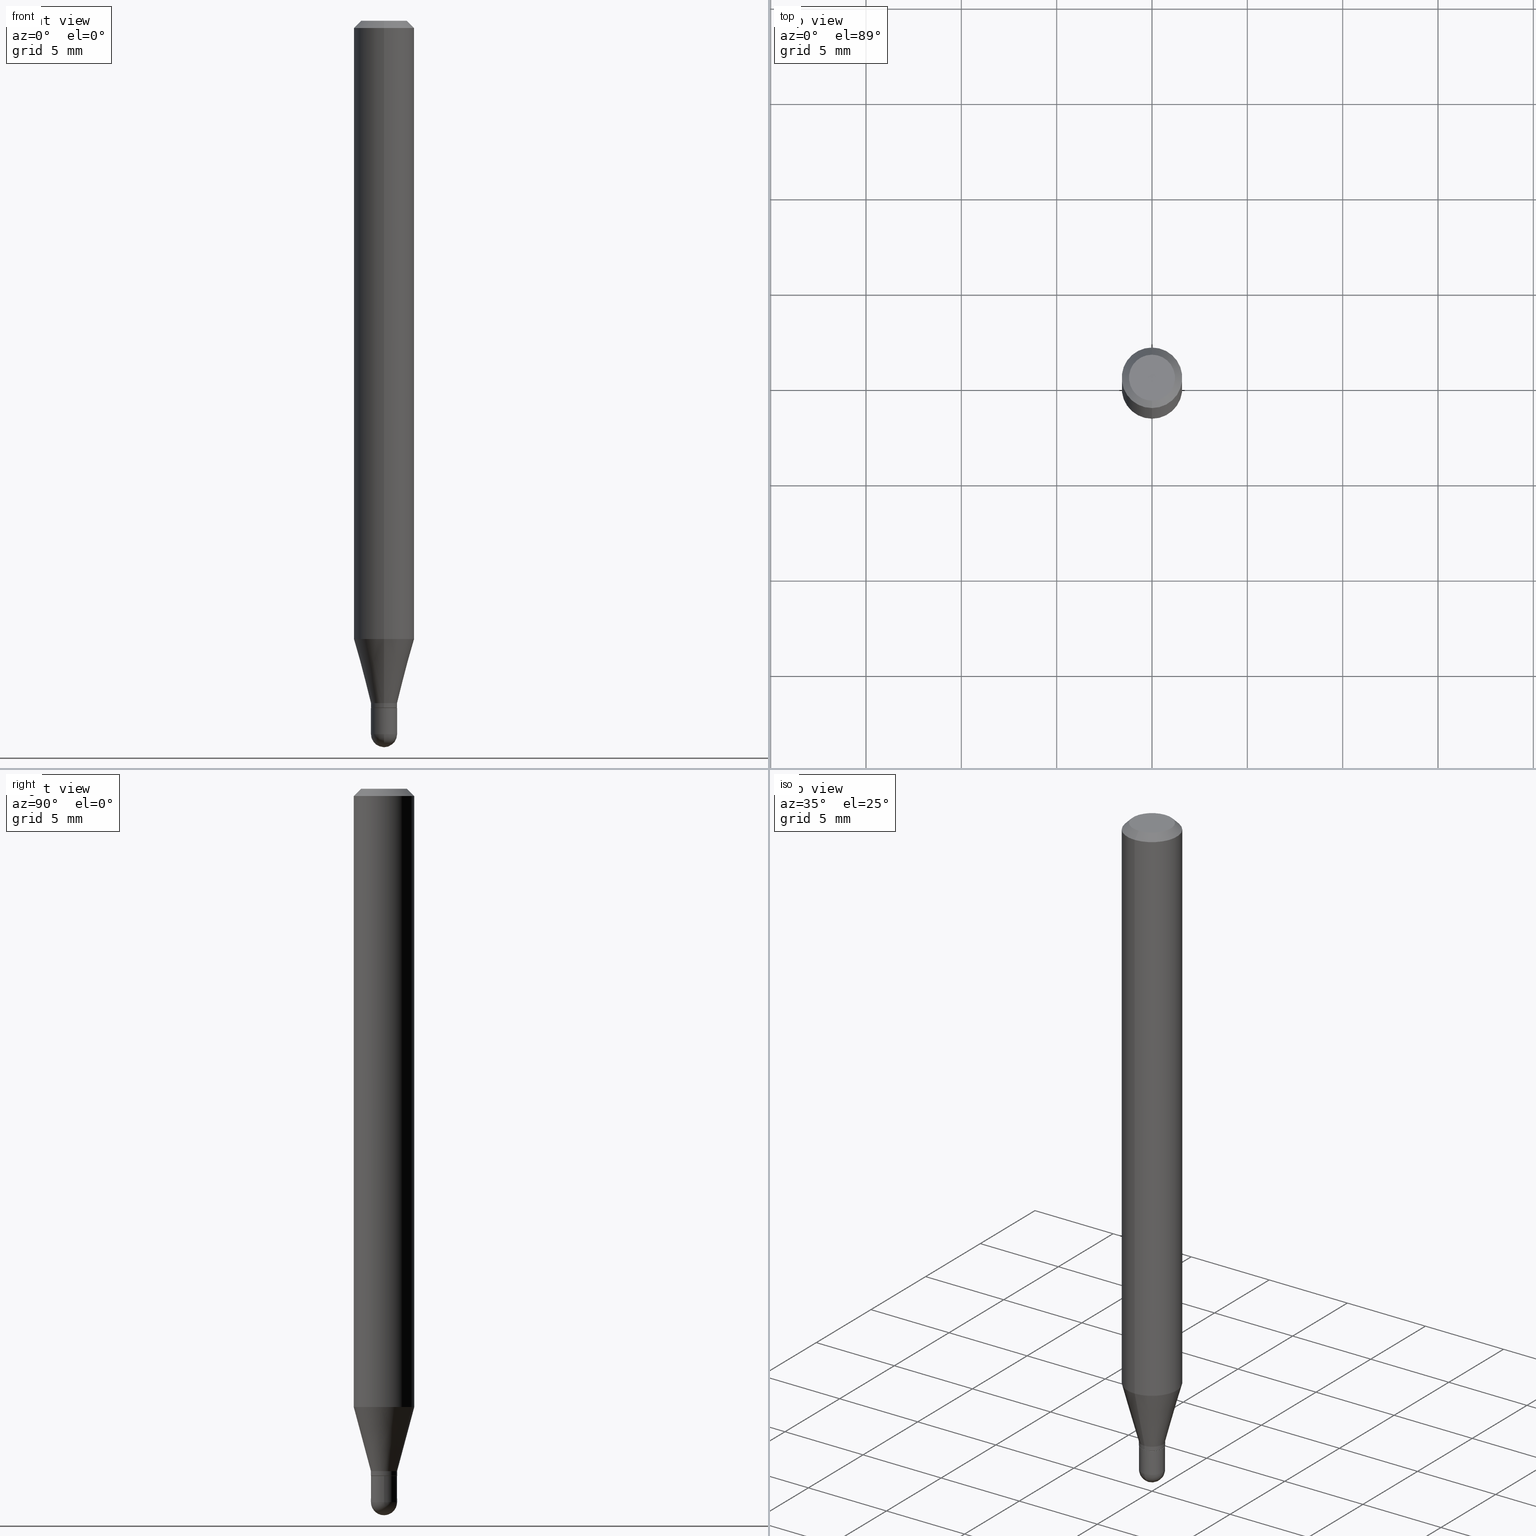
[diagram: canonical four-view strip — front | top / right | iso, engineering-drawing reading convention]
A machine part, canonical four-view strip (front | top / right | iso — engineering-drawing reading convention). The complete STEP part file that produces these views, byte-faithful:
ISO-10303-21;
HEADER;
FILE_DESCRIPTION (( 'STEP AP203' ),
    '1' );
FILE_NAME ('02517.STEP',
    '2024-03-07T20:12:14',
    ( '' ),
    ( '' ),
    'SwSTEP 2.0',
    'SolidWorks 2023',
    '' );
FILE_SCHEMA (( 'CONFIG_CONTROL_DESIGN' ));
ENDSEC;

DATA;
#1 = DIRECTION ( 'NONE',  ( 1.000000000000000000, -6.982962677686267499E-15, 4.876176775795935232E-29 ) ) ;
#2 = ORIENTED_EDGE ( 'NONE', *, *, #264, .T. ) ;
#3 = CONICAL_SURFACE ( 'NONE', #182, 0.02699999999999992337, 0.2617993877991505736 ) ;
#4 = DIRECTION ( 'NONE',  ( -4.937700262164674260E-15, -0.7071067811865632269, 0.7071067811865319186 ) ) ;
#5 = CARTESIAN_POINT ( 'NONE',  ( 3.445667035650748496E-29, -4.919495075907522612E-15, -1.409000000000000474 ) ) ;
#6 = FACE_OUTER_BOUND ( 'NONE', #241, .T. ) ;
#7 =( NAMED_UNIT ( * ) SI_UNIT ( $, .STERADIAN. ) SOLID_ANGLE_UNIT ( ) );
#8 = EDGE_CURVE ( 'NONE', #158, #416, #501, .T. ) ;
#9 = ORIENTED_EDGE ( 'NONE', *, *, #446, .T. ) ;
#10 = CARTESIAN_POINT ( 'NONE',  ( 0.000000000000000000, 0.000000000000000000, 0.000000000000000000 ) ) ;
#11 = VECTOR ( 'NONE', #313, 39.37007874015748143 ) ;
#12 = CARTESIAN_POINT ( 'NONE',  ( 3.470121734271405270E-29, -4.954409874175139427E-15, -1.419000000000000039 ) ) ;
#13 = FACE_OUTER_BOUND ( 'NONE', #245, .T. ) ;
#14 = AXIS2_PLACEMENT_3D ( 'NONE', #154, #211, #367 ) ;
#15 = CALENDAR_DATE ( 2024, 7, 3 ) ;
#16 = DIRECTION ( 'NONE',  ( -6.982962677686265922E-15, -1.000000000000000000, 4.370956789862821150E-15 ) ) ;
#17 = DIRECTION ( 'NONE',  ( -2.445469862065824792E-29, 3.491479826761902806E-15, 1.000000000000000000 ) ) ;
#18 = ORIENTED_EDGE ( 'NONE', *, *, #413, .F. ) ;
#19 = EDGE_CURVE ( 'NONE', #490, #131, #100, .T. ) ;
#20 = PERSON_AND_ORGANIZATION ( #263, #296 ) ;
#21 = EDGE_LOOP ( 'NONE', ( #95, #466, #496, #99 ) ) ;
#22 = ORIENTED_EDGE ( 'NONE', *, *, #252, .T. ) ;
#23 = PERSON_AND_ORGANIZATION ( #263, #296 ) ;
#24 = CIRCLE ( 'NONE', #98, 0.02699999999999992337 ) ;
#25 = DIRECTION ( 'NONE',  ( 1.839019923739602287E-15, 0.2588190451025252359, 0.9659258262890670910 ) ) ;
#26 = PERSON_AND_ORGANIZATION ( #263, #296 ) ;
#27 = CARTESIAN_POINT ( 'NONE',  ( -4.364351673553912750E-16, -0.06250000000000005551, -0.01500000000000011047 ) ) ;
#28 = EDGE_CURVE ( 'NONE', #125, #490, #506, .T. ) ;
#29 = ORIENTED_EDGE ( 'NONE', *, *, #426, .T. ) ;
#30 = VECTOR ( 'NONE', #25, 39.37007874015748143 ) ;
#31 = CIRCLE ( 'NONE', #310, 0.02649999999999999925 ) ;
#32 = CARTESIAN_POINT ( 'NONE',  ( 0.000000000000000000, 0.000000000000000000, 0.000000000000000000 ) ) ;
#33 = APPROVAL ( #85, 'UNSPECIFIED' ) ;
#34 = DIRECTION ( 'NONE',  ( 1.000000000000000000, -7.105427357601001070E-15, 4.926315508542082329E-29 ) ) ;
#35 = DIRECTION ( 'NONE',  ( -1.000000000000000000, 6.982962677686265922E-15, -4.876176775795935793E-29 ) ) ;
#36 = ORIENTED_EDGE ( 'NONE', *, *, #72, .F. ) ;
#37 = DIRECTION ( 'NONE',  ( -2.445468806185136597E-29, 3.491481338843145583E-15, 1.000000000000000000 ) ) ;
#38 = VECTOR ( 'NONE', #4, 39.37007874015748143 ) ;
#39 = APPLICATION_PROTOCOL_DEFINITION ( 'international standard', 'config_control_design', 1994, #393 ) ;
#40 = CARTESIAN_POINT ( 'NONE',  ( 3.179678742526774589E-16, 0.02699999999999500022, -1.409000000000000474 ) ) ;
#41 = CARTESIAN_POINT ( 'NONE',  ( 1.918465386552605006E-16, 0.02699999999999487879, -1.418500000000000094 ) ) ;
#42 = CARTESIAN_POINT ( 'NONE',  ( -3.773273898774340269E-16, -0.04749999999999999362, -1.623017277648283260E-16 ) ) ;
#43 = EDGE_CURVE ( 'NONE', #312, #502, #304, .T. ) ;
#44 = ORIENTED_EDGE ( 'NONE', *, *, #207, .F. ) ;
#45 = DIRECTION ( 'NONE',  ( -2.445468806185136597E-29, 3.491481338843145583E-15, 1.000000000000000000 ) ) ;
#46 = CIRCLE ( 'NONE', #305, 0.02699999999999999969 ) ;
#47 = ORIENTED_EDGE ( 'NONE', *, *, #28, .T. ) ;
#48 = CARTESIAN_POINT ( 'NONE',  ( -4.364351673553605587E-16, -0.06250000000000449640, -1.276512196331305304 ) ) ;
#49 = FACE_OUTER_BOUND ( 'NONE', #492, .T. ) ;
#50 = DIRECTION ( 'NONE',  ( -2.445469862065824792E-29, 3.491479826761902806E-15, 1.000000000000000000 ) ) ;
#51 = CARTESIAN_POINT ( 'NONE',  ( 3.445667035650748496E-29, -4.919495075907522612E-15, -1.409000000000000474 ) ) ;
#52 = DIRECTION ( 'NONE',  ( 4.937700262164548042E-15, 0.7071067811865451302, -0.7071067811865499042 ) ) ;
#53 = EDGE_CURVE ( 'NONE', #354, #458, #137, .T. ) ;
#54 = DIRECTION ( 'NONE',  ( 1.000000000000000000, -6.982962677686265922E-15, 4.883557194083112901E-29 ) ) ;
#55 = DIRECTION ( 'NONE',  ( -6.982962677686265922E-15, -1.000000000000000000, 0.000000000000000000 ) ) ;
#56 = AXIS2_PLACEMENT_3D ( 'NONE', #161, #325, #123 ) ;
#57 = EDGE_LOOP ( 'NONE', ( #218, #216, #22, #214, #18 ) ) ;
#58 = ORIENTED_EDGE ( 'NONE', *, *, #19, .F. ) ;
#59 = DATE_TIME_ROLE ( 'creation_date' ) ;
#60 = VERTEX_POINT ( 'NONE', #462 ) ;
#61 = EDGE_CURVE ( 'NONE', #60, #270, #430, .T. ) ;
#62 = CARTESIAN_POINT ( 'NONE',  ( 4.440892098500625669E-16, 0.06250000000000000000, -2.182174891726189254E-16 ) ) ;
#63 = COORDINATED_UNIVERSAL_TIME_OFFSET ( 5, 0, .BEHIND. ) ;
#64 = AXIS2_PLACEMENT_3D ( 'NONE', #32, #205, #361 ) ;
#65 = EDGE_LOOP ( 'NONE', ( #327, #328, #9, #391 ) ) ;
#66 = EDGE_CURVE ( 'NONE', #502, #269, #438, .T. ) ;
#67 = DIRECTION ( 'NONE',  ( -2.445469862065824792E-29, 3.491479826761902806E-15, 1.000000000000000000 ) ) ;
#68 = FACE_OUTER_BOUND ( 'NONE', #217, .T. ) ;
#69 = EDGE_CURVE ( 'NONE', #158, #125, #340, .T. ) ;
#70 = AXIS2_PLACEMENT_3D ( 'NONE', #408, #17, #55 ) ;
#71 = DIRECTION ( 'NONE',  ( -6.982962677686265922E-15, -1.000000000000000000, 3.483106191921935554E-15 ) ) ;
#72 = EDGE_CURVE ( 'NONE', #416, #490, #79, .T. ) ;
#73 = CARTESIAN_POINT ( 'NONE',  ( -1.850485109586513244E-16, -0.02650000000000495362, -1.419000000000000039 ) ) ;
#74 = DIRECTION ( 'NONE',  ( -6.982962677686265922E-15, -1.000000000000000000, 0.000000000000000000 ) ) ;
#75 = AXIS2_PLACEMENT_3D ( 'NONE', #364, #126, #16 ) ;
#76 = CARTESIAN_POINT ( 'NONE',  ( 3.468898999340373272E-29, -4.952664134261759059E-15, -1.418500000000000094 ) ) ;
#77 = ORIENTED_EDGE ( 'NONE', *, *, #43, .T. ) ;
#78 = LINE ( 'NONE', #473, #231 ) ;
#79 = CIRCLE ( 'NONE', #167, 0.06250000000000000000 ) ;
#80 = FACE_OUTER_BOUND ( 'NONE', #57, .T. ) ;
#81 = ADVANCED_FACE ( 'NONE', ( #49 ), #357, .T. ) ;
#82 = LINE ( 'NONE', #319, #346 ) ;
#83 = SPHERICAL_SURFACE ( 'NONE', #505, 0.02700000000000014888 ) ;
#84 = ORIENTED_EDGE ( 'NONE', *, *, #147, .T. ) ;
#85 = APPROVAL_STATUS ( 'not_yet_approved' ) ;
#86 = DIRECTION ( 'NONE',  ( -2.445469862065824792E-29, 3.491479826761902806E-15, 1.000000000000000000 ) ) ;
#87 = DIRECTION ( 'NONE',  ( -2.445469862065824792E-29, 3.491479826761902806E-15, 1.000000000000000000 ) ) ;
#88 = FACE_OUTER_BOUND ( 'NONE', #170, .T. ) ;
#89 = APPROVAL_DATE_TIME ( #162, #375 ) ;
#90 = VERTEX_POINT ( 'NONE', #234 ) ;
#91 = CC_DESIGN_APPROVAL ( #375, ( #198 ) ) ;
#92 = CLOSED_SHELL ( 'NONE', ( #184, #81, #349, #230, #439 ) ) ;
#93 = VECTOR ( 'NONE', #52, 39.37007874015748143 ) ;
#94 = APPROVAL_ROLE ( '' ) ;
#95 = ORIENTED_EDGE ( 'NONE', *, *, #72, .T. ) ;
#96 = CC_DESIGN_PERSON_AND_ORGANIZATION_ASSIGNMENT ( #20, #215, ( #198 ) ) ;
#97 = CARTESIAN_POINT ( 'NONE',  ( 0.000000000000000000, 0.000000000000000000, 0.000000000000000000 ) ) ;
#98 = AXIS2_PLACEMENT_3D ( 'NONE', #76, #267, #117 ) ;
#99 = ORIENTED_EDGE ( 'NONE', *, *, #152, .F. ) ;
#100 = LINE ( 'NONE', #62, #279 ) ;
#101 = DIRECTION ( 'NONE',  ( 1.000000000000000000, -6.982962677686259611E-15, 0.000000000000000000 ) ) ;
#102 = VECTOR ( 'NONE', #136, 39.37007874015748854 ) ;
#103 = VECTOR ( 'NONE', #478, 39.37007874015748143 ) ;
#104 = DIRECTION ( 'NONE',  ( 7.105427357601001070E-15, 1.000000000000000000, 0.000000000000000000 ) ) ;
#105 = PRODUCT_DEFINITION_SHAPE ( 'NONE', 'NONE',  #166 ) ;
#106 = DIRECTION ( 'NONE',  ( -2.445468806185136877E-29, 3.491481338843145188E-15, 1.000000000000000000 ) ) ;
#107 = EDGE_CURVE ( 'NONE', #90, #253, #200, .T. ) ;
#108 = VERTEX_POINT ( 'NONE', #390 ) ;
#109 = DIRECTION ( 'NONE',  ( 0.000000000000000000, 0.000000000000000000, 1.000000000000000000 ) ) ;
#110 = AXIS2_PLACEMENT_3D ( 'NONE', #5, #273, #314 ) ;
#111 = AXIS2_PLACEMENT_3D ( 'NONE', #342, #174, #431 ) ;
#112 = ORIENTED_EDGE ( 'NONE', *, *, #147, .F. ) ;
#113 = CARTESIAN_POINT ( 'NONE',  ( -4.287811248607203282E-16, -0.06250000000000005551, -0.01500000000000011047 ) ) ;
#114 = DIRECTION ( 'NONE',  ( -2.445469862065824792E-29, 3.491479826761902806E-15, 1.000000000000000000 ) ) ;
#115 = CARTESIAN_POINT ( 'NONE',  ( 3.316907271900976096E-16, 0.04749999999999999362, -3.299188015391997739E-16 ) ) ;
#116 = VERTEX_POINT ( 'NONE', #192 ) ;
#117 = DIRECTION ( 'NONE',  ( -6.982962677686265922E-15, -1.000000000000000000, 0.000000000000000000 ) ) ;
#118 = CARTESIAN_POINT ( 'NONE',  ( 1.885399922975638746E-16, 0.02699999999999504532, -1.419000000000000039 ) ) ;
#119 = CIRCLE ( 'NONE', #130, 0.02699999999999999969 ) ;
#120 = DIRECTION ( 'NONE',  ( 2.445469862065824792E-29, -3.491479826761902806E-15, -1.000000000000000000 ) ) ;
#121 = DIRECTION ( 'NONE',  ( 1.000000000000000000, -6.982962677686267499E-15, 4.876176775795935232E-29 ) ) ;
#122 = DIRECTION ( 'NONE',  ( -6.982962677686265922E-15, -1.000000000000000000, 0.000000000000000000 ) ) ;
#123 = DIRECTION ( 'NONE',  ( -6.982962677686265922E-15, -1.000000000000000000, 0.000000000000000000 ) ) ;
#124 = DIRECTION ( 'NONE',  ( 1.000000000000000000, 0.000000000000000000, 0.000000000000000000 ) ) ;
#125 = VERTEX_POINT ( 'NONE', #40 ) ;
#126 = DIRECTION ( 'NONE',  ( -2.445469862065824792E-29, 3.491479826761902806E-15, 1.000000000000000000 ) ) ;
#127 = ORIENTED_EDGE ( 'NONE', *, *, #252, .F. ) ;
#128 = PERSON_AND_ORGANIZATION ( #263, #296 ) ;
#129 = ORIENTED_EDGE ( 'NONE', *, *, #271, .F. ) ;
#130 = AXIS2_PLACEMENT_3D ( 'NONE', #387, #188, #511 ) ;
#131 = VERTEX_POINT ( 'NONE', #351 ) ;
#132 = CC_DESIGN_DATE_AND_TIME_ASSIGNMENT ( #363, #59, ( #166 ) ) ;
#133 = APPROVAL_STATUS ( 'not_yet_approved' ) ;
#134 = DIRECTION ( 'NONE',  ( -6.982962677686266711E-15, -1.000000000000000000, 3.491479826761903200E-15 ) ) ;
#135 = ADVANCED_FACE ( 'NONE', ( #315 ), #452, .T. ) ;
#136 = DIRECTION ( 'NONE',  ( -1.807323732225332111E-15, -0.2588190451025184635, 0.9659258262890689783 ) ) ;
#137 = CIRCLE ( 'NONE', #397, 0.04749999999999999362 ) ;
#138 = CONICAL_SURFACE ( 'NONE', #281, 0.06250000000000000000, 0.7853981633974483900 ) ;
#139 = DIRECTION ( 'NONE',  ( -2.445469862065824792E-29, 3.491479826761902806E-15, 1.000000000000000000 ) ) ;
#140 = CARTESIAN_POINT ( 'NONE',  ( 3.602175551510707068E-29, -5.142952012115954617E-15, -1.473000000000000309 ) ) ;
#141 = CARTESIAN_POINT ( 'NONE',  ( 3.668204793098817781E-31, -5.237219740142969111E-17, -0.01500000000000032904 ) ) ;
#142 = ADVANCED_FACE ( 'NONE', ( #407 ), #411, .F. ) ;
#143 = CARTESIAN_POINT ( 'NONE',  ( -0.02699999999999999969, -4.856835477311961471E-15, -1.419000000000000039 ) ) ;
#144 = DIRECTION ( 'NONE',  ( -2.445469862065824792E-29, 3.491479826761902806E-15, 1.000000000000000000 ) ) ;
#145 = APPROVAL_PERSON_ORGANIZATION ( #445, #379, #94 ) ;
#146 = CIRCLE ( 'NONE', #75, 0.06250000000000000000 ) ;
#147 = EDGE_CURVE ( 'NONE', #354, #131, #359, .T. ) ;
#148 = ORIENTED_EDGE ( 'NONE', *, *, #43, .F. ) ;
#149 = CARTESIAN_POINT ( 'NONE',  ( -0.02700000000000000316, -4.856835477311961471E-15, -1.473000000000000309 ) ) ;
#150 = AXIS2_PLACEMENT_3D ( 'NONE', #12, #87, #236 ) ;
#151 = AXIS2_PLACEMENT_3D ( 'NONE', #190, #347, #186 ) ;
#152 = EDGE_CURVE ( 'NONE', #416, #386, #82, .T. ) ;
#153 = DIRECTION ( 'NONE',  ( -2.445469862065824792E-29, 3.491479826761902806E-15, 1.000000000000000000 ) ) ;
#154 = CARTESIAN_POINT ( 'NONE',  ( 3.445667035650748496E-29, -4.919495075907522612E-15, -1.409000000000000474 ) ) ;
#155 = ADVANCED_FACE ( 'NONE', ( #447 ), #432, .T. ) ;
#156 = CARTESIAN_POINT ( 'NONE',  ( 3.121672104687660852E-29, -4.456916582106282753E-15, -1.276512196331305526 ) ) ;
#157 = CARTESIAN_POINT ( 'NONE',  ( 4.364351673553919652E-16, 0.06249999999999995143, -0.01500000000000054588 ) ) ;
#158 = VERTEX_POINT ( 'NONE', #474 ) ;
#159 = CARTESIAN_POINT ( 'NONE',  ( 3.470121734271405270E-29, -4.954409874175139427E-15, -1.419000000000000039 ) ) ;
#160 = VECTOR ( 'NONE', #276, 39.37007874015748143 ) ;
#161 = CARTESIAN_POINT ( 'NONE',  ( 3.470121734271405270E-29, -4.954409874175139427E-15, -1.419000000000000039 ) ) ;
#162 = DATE_AND_TIME ( #455, #309 ) ;
#163 = PLANE ( 'NONE',  #323 ) ;
#164 = FACE_OUTER_BOUND ( 'NONE', #293, .T. ) ;
#165 = APPROVAL_ROLE ( '' ) ;
#166 = PRODUCT_DEFINITION ( 'UNKNOWN', '', #339, #467 ) ;
#167 = AXIS2_PLACEMENT_3D ( 'NONE', #156, #428, #400 ) ;
#168 = CIRCLE ( 'NONE', #227, 0.02700000000000014888 ) ;
#169 = ORIENTED_EDGE ( 'NONE', *, *, #271, .T. ) ;
#170 = EDGE_LOOP ( 'NONE', ( #77, #398, #173, #235, #376 ) ) ;
#171 = DATE_AND_TIME ( #291, #331 ) ;
#172 = VERTEX_POINT ( 'NONE', #73 ) ;
#173 = ORIENTED_EDGE ( 'NONE', *, *, #360, .F. ) ;
#174 = DIRECTION ( 'NONE',  ( -2.445469862065824792E-29, 3.491479826761902806E-15, 1.000000000000000000 ) ) ;
#175 = COORDINATED_UNIVERSAL_TIME_OFFSET ( 5, 0, .BEHIND. ) ;
#176 = ORIENTED_EDGE ( 'NONE', *, *, #419, .F. ) ;
#177 = EDGE_LOOP ( 'NONE', ( #29, #196, #434, #176 ) ) ;
#178 = CONICAL_SURFACE ( 'NONE', #266, 0.02649999999999999925, 0.7853981633974739252 ) ;
#179 = CARTESIAN_POINT ( 'NONE',  ( -1.885399922974942083E-16, -0.02700000000000484304, -1.409000000000000474 ) ) ;
#180 = DIRECTION ( 'NONE',  ( -6.982962677686265922E-15, -1.000000000000000000, 3.491479826761902806E-15 ) ) ;
#181 = CIRCLE ( 'NONE', #453, 0.06250000000000000000 ) ;
#182 = AXIS2_PLACEMENT_3D ( 'NONE', #51, #86, #122 ) ;
#183 = DIRECTION ( 'NONE',  ( -6.982962677686265922E-15, -1.000000000000000000, 3.491479826761902411E-15 ) ) ;
#184 = ADVANCED_FACE ( 'NONE', ( #88 ), #243, .T. ) ;
#185 = ORIENTED_EDGE ( 'NONE', *, *, #202, .F. ) ;
#186 = DIRECTION ( 'NONE',  ( -6.982962677686265922E-15, -1.000000000000000000, 3.483106191921935554E-15 ) ) ;
#187 = CC_DESIGN_PERSON_AND_ORGANIZATION_ASSIGNMENT ( #326, #285, ( #339 ) ) ;
#188 = DIRECTION ( 'NONE',  ( -2.445468806185136597E-29, 3.491481338843145583E-15, 1.000000000000000000 ) ) ;
#189 = CIRCLE ( 'NONE', #399, 0.02699999999999992337 ) ;
#190 = CARTESIAN_POINT ( 'NONE',  ( 3.668204793098817781E-31, -5.237219740142969111E-17, -0.01500000000000032904 ) ) ;
#191 = CARTESIAN_POINT ( 'NONE',  ( 3.470121734271405270E-29, -4.954409874175139427E-15, -1.419000000000000039 ) ) ;
#192 = CARTESIAN_POINT ( 'NONE',  ( -1.885399922974946027E-16, -0.02700000000000496794, -1.418500000000000094 ) ) ;
#193 = ORIENTED_EDGE ( 'NONE', *, *, #337, .T. ) ;
#194 = FACE_OUTER_BOUND ( 'NONE', #65, .T. ) ;
#195 = CARTESIAN_POINT ( 'NONE',  ( 1.882938249764612045E-16, 0.02649999999999504141, -1.419000000000000039 ) ) ;
#196 = ORIENTED_EDGE ( 'NONE', *, *, #469, .T. ) ;
#197 = CARTESIAN_POINT ( 'NONE',  ( 1.918465386552636068E-16, 0.02699999999999493430, -1.473000000000000309 ) ) ;
#198 = SECURITY_CLASSIFICATION ( '', '', #287 ) ;
#199 = LINE ( 'NONE', #356, #38 ) ;
#200 = LINE ( 'NONE', #195, #414 ) ;
#201 = CLOSED_SHELL ( 'NONE', ( #402, #248, #135, #417, #322, #155, #292, #389, #316, #142, #463, #385 ) ) ;
#202 = EDGE_CURVE ( 'NONE', #172, #90, #298, .T. ) ;
#203 =( NAMED_UNIT ( * ) PLANE_ANGLE_UNIT ( ) SI_UNIT ( $, .RADIAN. ) );
#204 =( CONVERSION_BASED_UNIT ( 'INCH', #483 ) LENGTH_UNIT ( ) NAMED_UNIT ( #208 ) );
#205 = DIRECTION ( 'NONE',  ( -2.445469862065824792E-29, 3.491479826761902806E-15, 1.000000000000000000 ) ) ;
#206 = DIRECTION ( 'NONE',  ( -6.982962677686265922E-15, -1.000000000000000000, 0.000000000000000000 ) ) ;
#207 = EDGE_CURVE ( 'NONE', #108, #312, #355, .T. ) ;
#208 = DIMENSIONAL_EXPONENTS ( 1.000000000000000000, 0.000000000000000000, 0.000000000000000000, 0.000000000000000000, 0.000000000000000000, 0.000000000000000000, 0.000000000000000000 ) ;
#209 = VECTOR ( 'NONE', #106, 39.37007874015748143 ) ;
#210 = AXIS2_PLACEMENT_3D ( 'NONE', #412, #481, #121 ) ;
#211 = DIRECTION ( 'NONE',  ( -2.445469862065824792E-29, 3.491479826761902806E-15, 1.000000000000000000 ) ) ;
#212 = CARTESIAN_POINT ( 'NONE',  ( 3.602175551510707068E-29, -5.142952012115954617E-15, -1.473000000000000309 ) ) ;
#213 = ORIENTED_EDGE ( 'NONE', *, *, #475, .T. ) ;
#214 = ORIENTED_EDGE ( 'NONE', *, *, #457, .T. ) ;
#215 = PERSON_AND_ORGANIZATION_ROLE ( 'classification_officer' ) ;
#216 = ORIENTED_EDGE ( 'NONE', *, *, #329, .T. ) ;
#217 = EDGE_LOOP ( 'NONE', ( #58, #193, #461, #512 ) ) ;
#218 = ORIENTED_EDGE ( 'NONE', *, *, #66, .F. ) ;
#219 = MECHANICAL_CONTEXT ( 'NONE', #393, 'mechanical' ) ;
#220 = APPROVAL_PERSON_ORGANIZATION ( #377, #33, #489 ) ;
#221 = CALENDAR_DATE ( 2024, 7, 3 ) ;
#222 = EDGE_LOOP ( 'NONE', ( #394, #213, #2, #112 ) ) ;
#223 = DIRECTION ( 'NONE',  ( -2.445469862065824792E-29, 3.491479826761902806E-15, 1.000000000000000000 ) ) ;
#224 = LOCAL_TIME ( 15, 12, 14.00000000000000000, #175 ) ;
#225 = ORIENTED_EDGE ( 'NONE', *, *, #202, .T. ) ;
#226 = FACE_OUTER_BOUND ( 'NONE', #177, .T. ) ;
#227 = AXIS2_PLACEMENT_3D ( 'NONE', #274, #34, #104 ) ;
#228 = CARTESIAN_POINT ( 'NONE',  ( -1.885399922974936906E-16, -0.02700000000000522121, -1.473000000000000309 ) ) ;
#229 = ORIENTED_EDGE ( 'NONE', *, *, #475, .F. ) ;
#230 = ADVANCED_FACE ( 'NONE', ( #164 ), #83, .T. ) ;
#231 = VECTOR ( 'NONE', #153, 39.37007874015748143 ) ;
#232 = DIRECTION ( 'NONE',  ( -6.982962677686265922E-15, -1.000000000000000000, 0.000000000000000000 ) ) ;
#233 = CARTESIAN_POINT ( 'NONE',  ( 0.000000000000000000, 0.000000000000000000, 0.000000000000000000 ) ) ;
#234 = CARTESIAN_POINT ( 'NONE',  ( 1.900701818158611607E-16, 0.02649999999999504141, -1.419000000000000039 ) ) ;
#235 = ORIENTED_EDGE ( 'NONE', *, *, #457, .F. ) ;
#236 = DIRECTION ( 'NONE',  ( -6.982962677686265922E-15, -1.000000000000000000, 3.491479826761902806E-15 ) ) ;
#237 = LINE ( 'NONE', #113, #11 ) ;
#238 = AXIS2_PLACEMENT_3D ( 'NONE', #10, #433, #395 ) ;
#239 = LINE ( 'NONE', #311, #160 ) ;
#240 = CARTESIAN_POINT ( 'NONE',  ( -0.02700000000000000316, 1.918465386552270727E-16, -1.328112474368824641E-30 ) ) ;
#241 = EDGE_LOOP ( 'NONE', ( #369, #275 ) ) ;
#242 = DIRECTION ( 'NONE',  ( -2.445468806185136597E-29, 3.491481338843145583E-15, 1.000000000000000000 ) ) ;
#243 = CYLINDRICAL_SURFACE ( 'NONE', #210, 0.02700000000000000316 ) ;
#244 =( GEOMETRIC_REPRESENTATION_CONTEXT ( 3 ) GLOBAL_UNCERTAINTY_ASSIGNED_CONTEXT ( ( #333 ) ) GLOBAL_UNIT_ASSIGNED_CONTEXT ( ( #204, #203, #7 ) ) REPRESENTATION_CONTEXT ( 'NONE', 'WORKASPACE' ) );
#245 = EDGE_LOOP ( 'NONE', ( #225, #308, #250, #290 ) ) ;
#246 = AXIS2_PLACEMENT_3D ( 'NONE', #212, #282, #443 ) ;
#247 = ORIENTED_EDGE ( 'NONE', *, *, #284, .F. ) ;
#248 = ADVANCED_FACE ( 'NONE', ( #13 ), #261, .T. ) ;
#249 = PERSON_AND_ORGANIZATION_ROLE ( 'creator' ) ;
#250 = ORIENTED_EDGE ( 'NONE', *, *, #426, .F. ) ;
#251 = PERSON_AND_ORGANIZATION ( #263, #296 ) ;
#252 = EDGE_CURVE ( 'NONE', #270, #108, #472, .T. ) ;
#253 = VERTEX_POINT ( 'NONE', #41 ) ;
#254 = PERSON_AND_ORGANIZATION_ROLE ( 'design_supplier' ) ;
#255 = CC_DESIGN_SECURITY_CLASSIFICATION ( #198, ( #339 ) ) ;
#256 = MANIFOLD_SOLID_BREP ( 'Body-Move/Copy2[2]', #201 ) ;
#257 = AXIS2_PLACEMENT_3D ( 'NONE', #97, #423, #180 ) ;
#258 = DIRECTION ( 'NONE',  ( 1.000000000000000000, -6.982962677686259611E-15, 0.000000000000000000 ) ) ;
#259 = CARTESIAN_POINT ( 'NONE',  ( 3.599866602529921766E-29, -5.146258558473651564E-15, -1.473000000000000087 ) ) ;
#260 = ORIENTED_EDGE ( 'NONE', *, *, #406, .T. ) ;
#261 = CONICAL_SURFACE ( 'NONE', #56, 0.02649999999999999925, 0.7853981633974739252 ) ;
#262 = EDGE_CURVE ( 'NONE', #131, #386, #365, .T. ) ;
#263 = PERSON ( 'UNSPECIFIED', 'UNSPECIFIED', 'UNSPECIFIED', ('UNSPECIFIED'), ('UNSPECIFIED'), ('UNSPECIFIED') ) ;
#264 = EDGE_CURVE ( 'NONE', #386, #131, #181, .T. ) ;
#265 = ORIENTED_EDGE ( 'NONE', *, *, #329, .F. ) ;
#266 = AXIS2_PLACEMENT_3D ( 'NONE', #191, #353, #404 ) ;
#267 = DIRECTION ( 'NONE',  ( -2.445469862065824792E-29, 3.491479826761902806E-15, 1.000000000000000000 ) ) ;
#268 = AXIS2_PLACEMENT_3D ( 'NONE', #302, #37, #101 ) ;
#269 = VERTEX_POINT ( 'NONE', #143 ) ;
#270 = VERTEX_POINT ( 'NONE', #228 ) ;
#271 = EDGE_CURVE ( 'NONE', #125, #158, #189, .T. ) ;
#272 = CYLINDRICAL_SURFACE ( 'NONE', #238, 0.06250000000000000000 ) ;
#273 = DIRECTION ( 'NONE',  ( -2.445469862065824792E-29, 3.491479826761902806E-15, 1.000000000000000000 ) ) ;
#274 = CARTESIAN_POINT ( 'NONE',  ( 3.599866602529921766E-29, -5.146258558473651564E-15, -1.473000000000000087 ) ) ;
#275 = ORIENTED_EDGE ( 'NONE', *, *, #297, .T. ) ;
#276 = DIRECTION ( 'NONE',  ( -2.445468806185136877E-29, 3.491481338843145188E-15, 1.000000000000000000 ) ) ;
#277 = DIRECTION ( 'NONE',  ( 2.445469862065824792E-29, -3.491479826761902806E-15, -1.000000000000000000 ) ) ;
#278 = DIRECTION ( 'NONE',  ( 1.000000000000000000, -6.982962677686261189E-15, 0.000000000000000000 ) ) ;
#279 = VECTOR ( 'NONE', #223, 39.37007874015748143 ) ;
#280 = DIRECTION ( 'NONE',  ( 2.438088387897960049E-29, -3.491481338843145188E-15, -1.000000000000000000 ) ) ;
#281 = AXIS2_PLACEMENT_3D ( 'NONE', #141, #295, #464 ) ;
#282 = DIRECTION ( 'NONE',  ( -2.445468806185136597E-29, 3.491481338843145583E-15, 1.000000000000000000 ) ) ;
#283 = ORIENTED_EDGE ( 'NONE', *, *, #419, .T. ) ;
#284 = EDGE_CURVE ( 'NONE', #60, #312, #168, .T. ) ;
#285 = PERSON_AND_ORGANIZATION_ROLE ( 'creator' ) ;
#286 = CC_DESIGN_PERSON_AND_ORGANIZATION_ASSIGNMENT ( #128, #254, ( #339 ) ) ;
#287 = SECURITY_CLASSIFICATION_LEVEL ( 'unclassified' ) ;
#288 = CARTESIAN_POINT ( 'NONE',  ( 3.470120235976709172E-29, -4.954412019818423555E-15, -1.419000000000000039 ) ) ;
#289 = AXIS2_PLACEMENT_3D ( 'NONE', #115, #277, #485 ) ;
#290 = ORIENTED_EDGE ( 'NONE', *, *, #446, .F. ) ;
#291 = CALENDAR_DATE ( 2024, 7, 3 ) ;
#292 = ADVANCED_FACE ( 'NONE', ( #68 ), #378, .T. ) ;
#293 = EDGE_LOOP ( 'NONE', ( #247, #338, #265, #148 ) ) ;
#294 = COORDINATED_UNIVERSAL_TIME_OFFSET ( 5, 0, .BEHIND. ) ;
#295 = DIRECTION ( 'NONE',  ( 2.445469862065824792E-29, -3.491479826761902806E-15, -1.000000000000000000 ) ) ;
#296 = ORGANIZATION ( 'UNSPECIFIED', 'UNSPECIFIED', '' ) ;
#297 = EDGE_CURVE ( 'NONE', #458, #354, #341, .T. ) ;
#298 = CIRCLE ( 'NONE', #70, 0.02649999999999999925 ) ;
#299 = EDGE_LOOP ( 'NONE', ( #499, #352 ) ) ;
#300 = FACE_OUTER_BOUND ( 'NONE', #449, .T. ) ;
#301 = ORIENTED_EDGE ( 'NONE', *, *, #61, .F. ) ;
#302 = CARTESIAN_POINT ( 'NONE',  ( 3.602175551510707068E-29, -5.142952012115954617E-15, -1.473000000000000309 ) ) ;
#303 = DIRECTION ( 'NONE',  ( -2.445468806185136597E-29, 3.491481338843145583E-15, 1.000000000000000000 ) ) ;
#304 = CIRCLE ( 'NONE', #494, 0.02700000000000000316 ) ;
#305 = AXIS2_PLACEMENT_3D ( 'NONE', #288, #392, #278 ) ;
#306 = CYLINDRICAL_SURFACE ( 'NONE', #471, 0.02699999999999992337 ) ;
#307 = ORIENTED_EDGE ( 'NONE', *, *, #424, .F. ) ;
#308 = ORIENTED_EDGE ( 'NONE', *, *, #107, .T. ) ;
#309 = LOCAL_TIME ( 15, 12, 14.00000000000000000, #294 ) ;
#310 = AXIS2_PLACEMENT_3D ( 'NONE', #159, #114, #350 ) ;
#311 = CARTESIAN_POINT ( 'NONE',  ( 0.02700000000000000316, -1.885399922975292387E-16, 1.316567729464902685E-30 ) ) ;
#312 = VERTEX_POINT ( 'NONE', #197 ) ;
#313 = DIRECTION ( 'NONE',  ( -4.851104656540964275E-15, -0.7071067811865500152, -0.7071067811865450192 ) ) ;
#314 = DIRECTION ( 'NONE',  ( -6.982962677686265922E-15, -1.000000000000000000, 0.000000000000000000 ) ) ;
#315 = FACE_OUTER_BOUND ( 'NONE', #222, .T. ) ;
#316 = ADVANCED_FACE ( 'NONE', ( #6 ), #477, .F. ) ;
#317 = LINE ( 'NONE', #435, #103 ) ;
#318 = DIRECTION ( 'NONE',  ( -6.982962677686265922E-15, -1.000000000000000000, 0.000000000000000000 ) ) ;
#319 = CARTESIAN_POINT ( 'NONE',  ( -4.364351673553916201E-16, -0.06250000000000000000, 2.182174891726189254E-16 ) ) ;
#320 = ORIENTED_EDGE ( 'NONE', *, *, #8, .T. ) ;
#321 = CYLINDRICAL_SURFACE ( 'NONE', #388, 0.02700000000000000316 ) ;
#322 = ADVANCED_FACE ( 'NONE', ( #405 ), #3, .T. ) ;
#323 = AXIS2_PLACEMENT_3D ( 'NONE', #118, #280, #35 ) ;
#324 = DIRECTION ( 'NONE',  ( -2.445469862065824792E-29, 3.491479826761902806E-15, 1.000000000000000000 ) ) ;
#325 = DIRECTION ( 'NONE',  ( -2.445469862065824792E-29, 3.491479826761902806E-15, 1.000000000000000000 ) ) ;
#326 = PERSON_AND_ORGANIZATION ( #263, #296 ) ;
#327 = ORIENTED_EDGE ( 'NONE', *, *, #107, .F. ) ;
#328 = ORIENTED_EDGE ( 'NONE', *, *, #424, .T. ) ;
#329 = EDGE_CURVE ( 'NONE', #502, #270, #508, .T. ) ;
#330 = SHAPE_DEFINITION_REPRESENTATION ( #105, #479 ) ;
#331 = LOCAL_TIME ( 15, 12, 14.00000000000000000, #63 ) ;
#332 = CALENDAR_DATE ( 2024, 7, 3 ) ;
#333 = UNCERTAINTY_MEASURE_WITH_UNIT (LENGTH_MEASURE( 1.000000000000000082E-05 ), #204, 'distance_accuracy_value', 'NONE');
#334 = CARTESIAN_POINT ( 'NONE',  ( 1.918465386552609197E-16, 0.02699999999999500022, -1.409000000000000474 ) ) ;
#335 = PRODUCT_RELATED_PRODUCT_CATEGORY ( 'detail', '', ( #420 ) ) ;
#336 = COORDINATED_UNIVERSAL_TIME_OFFSET ( 5, 0, .BEHIND. ) ;
#337 = EDGE_CURVE ( 'NONE', #490, #416, #146, .T. ) ;
#338 = ORIENTED_EDGE ( 'NONE', *, *, #61, .T. ) ;
#339 = PRODUCT_DEFINITION_FORMATION_WITH_SPECIFIED_SOURCE ( 'ANY', '', #420, .NOT_KNOWN. ) ;
#340 = CIRCLE ( 'NONE', #110, 0.02699999999999992337 ) ;
#341 = CIRCLE ( 'NONE', #111, 0.04749999999999999362 ) ;
#342 = CARTESIAN_POINT ( 'NONE',  ( 8.024736466020592448E-45, -1.145718698922053548E-30, -3.281470195360187004E-16 ) ) ;
#343 = CARTESIAN_POINT ( 'NONE',  ( 3.668204793098817781E-31, -5.237219740142969111E-17, -0.01500000000000032904 ) ) ;
#344 = DIRECTION ( 'NONE',  ( -6.982962677686265922E-15, -1.000000000000000000, 0.000000000000000000 ) ) ;
#345 = FACE_OUTER_BOUND ( 'NONE', #429, .T. ) ;
#346 = VECTOR ( 'NONE', #324, 39.37007874015748143 ) ;
#347 = DIRECTION ( 'NONE',  ( -2.445469862065824792E-29, 3.491479826761902806E-15, 1.000000000000000000 ) ) ;
#348 = CARTESIAN_POINT ( 'NONE',  ( 3.840629472727447874E-16, 0.04749999999999999362, -4.939923113072090255E-16 ) ) ;
#349 = ADVANCED_FACE ( 'NONE', ( #442 ), #163, .F. ) ;
#350 = DIRECTION ( 'NONE',  ( -6.982962677686265922E-15, -1.000000000000000000, 0.000000000000000000 ) ) ;
#351 = CARTESIAN_POINT ( 'NONE',  ( 4.440892098500940720E-16, 0.06249999999999995143, -0.01500000000000054588 ) ) ;
#352 = ORIENTED_EDGE ( 'NONE', *, *, #413, .T. ) ;
#353 = DIRECTION ( 'NONE',  ( -2.445469862065824792E-29, 3.491479826761902806E-15, 1.000000000000000000 ) ) ;
#354 = VERTEX_POINT ( 'NONE', #348 ) ;
#355 = CIRCLE ( 'NONE', #246, 0.02700000000000000316 ) ;
#356 = CARTESIAN_POINT ( 'NONE',  ( -1.850485109586513244E-16, -0.02650000000000495362, -1.419000000000000039 ) ) ;
#357 = SPHERICAL_SURFACE ( 'NONE', #374, 0.02700000000000014888 ) ;
#358 = ORIENTED_EDGE ( 'NONE', *, *, #262, .T. ) ;
#359 = LINE ( 'NONE', #157, #93 ) ;
#360 = EDGE_CURVE ( 'NONE', #368, #269, #119, .T. ) ;
#361 = DIRECTION ( 'NONE',  ( -6.982962677686265922E-15, -1.000000000000000000, 3.491479826761902411E-15 ) ) ;
#362 = CARTESIAN_POINT ( 'NONE',  ( 3.599866602529921766E-29, -5.146258558473651564E-15, -1.473000000000000087 ) ) ;
#363 = DATE_AND_TIME ( #332, #503 ) ;
#364 = CARTESIAN_POINT ( 'NONE',  ( 3.121672104687660852E-29, -4.456916582106282753E-15, -1.276512196331305526 ) ) ;
#365 = CIRCLE ( 'NONE', #151, 0.06250000000000000000 ) ;
#366 = CARTESIAN_POINT ( 'NONE',  ( 3.468898999340373272E-29, -4.952664134261759059E-15, -1.418500000000000094 ) ) ;
#367 = DIRECTION ( 'NONE',  ( -6.982962677686265922E-15, -1.000000000000000000, 0.000000000000000000 ) ) ;
#368 = VERTEX_POINT ( 'NONE', #509 ) ;
#369 = ORIENTED_EDGE ( 'NONE', *, *, #53, .T. ) ;
#370 = EDGE_LOOP ( 'NONE', ( #418, #47, #36, #470 ) ) ;
#371 = COORDINATED_UNIVERSAL_TIME_OFFSET ( 5, 0, .BEHIND. ) ;
#372 = ORIENTED_EDGE ( 'NONE', *, *, #284, .T. ) ;
#373 = ORIENTED_EDGE ( 'NONE', *, *, #469, .F. ) ;
#374 = AXIS2_PLACEMENT_3D ( 'NONE', #436, #396, #318 ) ;
#375 = APPROVAL ( #133, 'UNSPECIFIED' ) ;
#376 = ORIENTED_EDGE ( 'NONE', *, *, #207, .T. ) ;
#377 = PERSON_AND_ORGANIZATION ( #263, #296 ) ;
#378 = CYLINDRICAL_SURFACE ( 'NONE', #257, 0.06250000000000000000 ) ;
#379 = APPROVAL ( #409, 'UNSPECIFIED' ) ;
#380 = AXIS2_PLACEMENT_3D ( 'NONE', #468, #109, #124 ) ;
#381 = AXIS2_PLACEMENT_3D ( 'NONE', #259, #383, #344 ) ;
#382 = AXIS2_PLACEMENT_3D ( 'NONE', #403, #120, #486 ) ;
#383 = DIRECTION ( 'NONE',  ( -1.000000000000000000, 6.982962677686265922E-15, -4.883557194083112340E-29 ) ) ;
#384 = CYLINDRICAL_SURFACE ( 'NONE', #64, 0.02699999999999992337 ) ;
#385 = ADVANCED_FACE ( 'NONE', ( #345 ), #306, .T. ) ;
#386 = VERTEX_POINT ( 'NONE', #27 ) ;
#387 = CARTESIAN_POINT ( 'NONE',  ( 3.470120235976709172E-29, -4.954412019818423555E-15, -1.419000000000000039 ) ) ;
#388 = AXIS2_PLACEMENT_3D ( 'NONE', #233, #45, #1 ) ;
#389 = ADVANCED_FACE ( 'NONE', ( #300 ), #138, .T. ) ;
#390 = CARTESIAN_POINT ( 'NONE',  ( 0.02700000000000000316, -5.237222008264718177E-15, -1.473000000000000309 ) ) ;
#391 = ORIENTED_EDGE ( 'NONE', *, *, #406, .F. ) ;
#392 = DIRECTION ( 'NONE',  ( -2.445468806185136597E-29, 3.491481338843145583E-15, 1.000000000000000000 ) ) ;
#393 = APPLICATION_CONTEXT ( 'configuration controlled 3d designs of mechanical parts and assemblies' ) ;
#394 = ORIENTED_EDGE ( 'NONE', *, *, #297, .F. ) ;
#395 = DIRECTION ( 'NONE',  ( -6.982962677686265922E-15, -1.000000000000000000, 3.491479826761902806E-15 ) ) ;
#396 = DIRECTION ( 'NONE',  ( 1.000000000000000000, -6.982962677686265922E-15, 4.883557194083112901E-29 ) ) ;
#397 = AXIS2_PLACEMENT_3D ( 'NONE', #498, #67, #134 ) ;
#398 = ORIENTED_EDGE ( 'NONE', *, *, #66, .T. ) ;
#399 = AXIS2_PLACEMENT_3D ( 'NONE', #401, #50, #74 ) ;
#400 = DIRECTION ( 'NONE',  ( -6.982962677686265922E-15, -1.000000000000000000, 4.370956789862821150E-15 ) ) ;
#401 = CARTESIAN_POINT ( 'NONE',  ( 3.445667035650748496E-29, -4.919495075907522612E-15, -1.409000000000000474 ) ) ;
#402 = ADVANCED_FACE ( 'NONE', ( #226 ), #384, .T. ) ;
#403 = CARTESIAN_POINT ( 'NONE',  ( 3.668204793098817781E-31, -5.237219740142969111E-17, -0.01500000000000032904 ) ) ;
#404 = DIRECTION ( 'NONE',  ( -6.982962677686265922E-15, -1.000000000000000000, 0.000000000000000000 ) ) ;
#405 = FACE_OUTER_BOUND ( 'NONE', #370, .T. ) ;
#406 = EDGE_CURVE ( 'NONE', #253, #116, #495, .T. ) ;
#407 = FACE_OUTER_BOUND ( 'NONE', #444, .T. ) ;
#408 = CARTESIAN_POINT ( 'NONE',  ( 3.470121734271405270E-29, -4.954409874175139427E-15, -1.419000000000000039 ) ) ;
#409 = APPROVAL_STATUS ( 'not_yet_approved' ) ;
#410 = DIRECTION ( 'NONE',  ( 1.000000000000000000, -6.982962677686259611E-15, 0.000000000000000000 ) ) ;
#411 = PLANE ( 'NONE',  #150 ) ;
#412 = CARTESIAN_POINT ( 'NONE',  ( 0.000000000000000000, 0.000000000000000000, 0.000000000000000000 ) ) ;
#413 = EDGE_CURVE ( 'NONE', #269, #368, #46, .T. ) ;
#414 = VECTOR ( 'NONE', #480, 39.37007874015748143 ) ;
#415 = AXIS2_PLACEMENT_3D ( 'NONE', #488, #242, #410 ) ;
#416 = VERTEX_POINT ( 'NONE', #48 ) ;
#417 = ADVANCED_FACE ( 'NONE', ( #441 ), #272, .T. ) ;
#418 = ORIENTED_EDGE ( 'NONE', *, *, #69, .T. ) ;
#419 = EDGE_CURVE ( 'NONE', #116, #158, #317, .T. ) ;
#420 = PRODUCT ( '02517', '02517', '', ( #219 ) ) ;
#421 = ORIENTED_EDGE ( 'NONE', *, *, #337, .F. ) ;
#422 = APPLICATION_CONTEXT ( 'configuration controlled 3d designs of mechanical parts and assemblies' ) ;
#423 = DIRECTION ( 'NONE',  ( -2.445469862065824792E-29, 3.491479826761902806E-15, 1.000000000000000000 ) ) ;
#424 = EDGE_CURVE ( 'NONE', #90, #172, #31, .T. ) ;
#425 = CC_DESIGN_DATE_AND_TIME_ASSIGNMENT ( #451, #497, ( #198 ) ) ;
#426 = EDGE_CURVE ( 'NONE', #116, #253, #24, .T. ) ;
#427 = MANIFOLD_SOLID_BREP ( 'Body-Move/Copy2[1]', #92 ) ;
#428 = DIRECTION ( 'NONE',  ( -2.445469862065824792E-29, 3.491479826761902806E-15, 1.000000000000000000 ) ) ;
#429 = EDGE_LOOP ( 'NONE', ( #373, #260, #283, #129 ) ) ;
#430 = CIRCLE ( 'NONE', #381, 0.02700000000000014888 ) ;
#431 = DIRECTION ( 'NONE',  ( -6.982962677686266711E-15, -1.000000000000000000, 3.491479826761903200E-15 ) ) ;
#432 = CONICAL_SURFACE ( 'NONE', #14, 0.02699999999999992337, 0.2617993877991505736 ) ;
#433 = DIRECTION ( 'NONE',  ( -2.445469862065824792E-29, 3.491479826761902806E-15, 1.000000000000000000 ) ) ;
#434 = ORIENTED_EDGE ( 'NONE', *, *, #69, .F. ) ;
#435 = CARTESIAN_POINT ( 'NONE',  ( -1.885399922975286470E-16, -0.02699999999999992337, 9.426995532257110084E-17 ) ) ;
#436 = CARTESIAN_POINT ( 'NONE',  ( 3.599866602529921766E-29, -5.146258558473651564E-15, -1.473000000000000087 ) ) ;
#437 =( LENGTH_UNIT ( ) NAMED_UNIT ( * ) SI_UNIT ( $, .METRE. ) );
#438 = LINE ( 'NONE', #240, #209 ) ;
#439 = ADVANCED_FACE ( 'NONE', ( #80 ), #321, .T. ) ;
#440 = CC_DESIGN_APPROVAL ( #379, ( #166 ) ) ;
#441 = FACE_OUTER_BOUND ( 'NONE', #21, .T. ) ;
#442 = FACE_OUTER_BOUND ( 'NONE', #299, .T. ) ;
#443 = DIRECTION ( 'NONE',  ( 1.000000000000000000, -6.982962677686259611E-15, 0.000000000000000000 ) ) ;
#444 = EDGE_LOOP ( 'NONE', ( #185, #307 ) ) ;
#445 = PERSON_AND_ORGANIZATION ( #263, #296 ) ;
#446 = EDGE_CURVE ( 'NONE', #172, #116, #199, .T. ) ;
#447 = FACE_OUTER_BOUND ( 'NONE', #460, .T. ) ;
#448 = APPROVAL_DATE_TIME ( #171, #33 ) ;
#449 = EDGE_LOOP ( 'NONE', ( #229, #454, #84, #358 ) ) ;
#450 = CC_DESIGN_APPROVAL ( #33, ( #339 ) ) ;
#451 = DATE_AND_TIME ( #15, #507 ) ;
#452 = CONICAL_SURFACE ( 'NONE', #382, 0.06250000000000000000, 0.7853981633974483900 ) ;
#453 = AXIS2_PLACEMENT_3D ( 'NONE', #343, #510, #71 ) ;
#454 = ORIENTED_EDGE ( 'NONE', *, *, #53, .F. ) ;
#455 = CALENDAR_DATE ( 2024, 7, 3 ) ;
#456 = APPLICATION_PROTOCOL_DEFINITION ( 'international standard', 'config_control_design', 1994, #422 ) ;
#457 = EDGE_CURVE ( 'NONE', #108, #368, #239, .T. ) ;
#458 = VERTEX_POINT ( 'NONE', #42 ) ;
#459 = APPROVAL_PERSON_ORGANIZATION ( #251, #375, #165 ) ;
#460 = EDGE_LOOP ( 'NONE', ( #504, #169, #320, #421 ) ) ;
#461 = ORIENTED_EDGE ( 'NONE', *, *, #152, .T. ) ;
#462 = CARTESIAN_POINT ( 'NONE',  ( 3.664739785806528624E-29, -5.242181827801266358E-15, -1.500000000000000444 ) ) ;
#463 = ADVANCED_FACE ( 'NONE', ( #194 ), #178, .T. ) ;
#464 = DIRECTION ( 'NONE',  ( 6.982962677686265922E-15, 1.000000000000000000, -3.483106191921935554E-15 ) ) ;
#465 = CARTESIAN_POINT ( 'NONE',  ( 0.000000000000000000, 0.000000000000000000, 0.000000000000000000 ) ) ;
#466 = ORIENTED_EDGE ( 'NONE', *, *, #19, .T. ) ;
#467 = DESIGN_CONTEXT ( 'detailed design', #422, 'design' ) ;
#468 = CARTESIAN_POINT ( 'NONE',  ( 0.000000000000000000, 0.000000000000000000, 0.000000000000000000 ) ) ;
#469 = EDGE_CURVE ( 'NONE', #253, #125, #78, .T. ) ;
#470 = ORIENTED_EDGE ( 'NONE', *, *, #8, .F. ) ;
#471 = AXIS2_PLACEMENT_3D ( 'NONE', #465, #144, #183 ) ;
#472 = CIRCLE ( 'NONE', #268, 0.02700000000000000316 ) ;
#473 = CARTESIAN_POINT ( 'NONE',  ( 1.918465386552264810E-16, 0.02699999999999992337, -9.426995532257110084E-17 ) ) ;
#474 = CARTESIAN_POINT ( 'NONE',  ( -1.885399922974942083E-16, -0.02700000000000484304, -1.409000000000000474 ) ) ;
#475 = EDGE_CURVE ( 'NONE', #458, #386, #237, .T. ) ;
#476 = CARTESIAN_POINT ( 'NONE',  ( 4.440892098500935790E-16, 0.06249999999999551747, -1.276512196331305971 ) ) ;
#477 = PLANE ( 'NONE',  #289 ) ;
#478 = DIRECTION ( 'NONE',  ( -2.445469862065824792E-29, 3.491479826761902806E-15, 1.000000000000000000 ) ) ;
#479 = ADVANCED_BREP_SHAPE_REPRESENTATION ( '02517', ( #427, #256, #380 ), #244 ) ;
#480 = DIRECTION ( 'NONE',  ( 5.024295867788190974E-15, 0.7071067811865681119, 0.7071067811865270336 ) ) ;
#481 = DIRECTION ( 'NONE',  ( -2.445468806185136597E-29, 3.491481338843145583E-15, 1.000000000000000000 ) ) ;
#482 = AXIS2_PLACEMENT_3D ( 'NONE', #366, #139, #232 ) ;
#483 = LENGTH_MEASURE_WITH_UNIT ( LENGTH_MEASURE( 0.02539999999999999897 ), #437 );
#484 = CC_DESIGN_PERSON_AND_ORGANIZATION_ASSIGNMENT ( #26, #487, ( #420 ) ) ;
#485 = DIRECTION ( 'NONE',  ( 6.982962677686265922E-15, 1.000000000000000000, -3.491479826761902806E-15 ) ) ;
#486 = DIRECTION ( 'NONE',  ( 6.982962677686265922E-15, 1.000000000000000000, -3.483106191921935554E-15 ) ) ;
#487 = PERSON_AND_ORGANIZATION_ROLE ( 'design_owner' ) ;
#488 = CARTESIAN_POINT ( 'NONE',  ( 3.602175551510707068E-29, -5.142952012115954617E-15, -1.473000000000000309 ) ) ;
#489 = APPROVAL_ROLE ( '' ) ;
#490 = VERTEX_POINT ( 'NONE', #476 ) ;
#491 = CC_DESIGN_PERSON_AND_ORGANIZATION_ASSIGNMENT ( #23, #249, ( #166 ) ) ;
#492 = EDGE_LOOP ( 'NONE', ( #301, #372, #44, #127 ) ) ;
#493 = APPROVAL_DATE_TIME ( #500, #379 ) ;
#494 = AXIS2_PLACEMENT_3D ( 'NONE', #140, #303, #258 ) ;
#495 = CIRCLE ( 'NONE', #482, 0.02699999999999992337 ) ;
#496 = ORIENTED_EDGE ( 'NONE', *, *, #264, .F. ) ;
#497 = DATE_TIME_ROLE ( 'classification_date' ) ;
#498 = CARTESIAN_POINT ( 'NONE',  ( 8.024736466020592448E-45, -1.145718698922053548E-30, -3.281470195360187004E-16 ) ) ;
#499 = ORIENTED_EDGE ( 'NONE', *, *, #360, .T. ) ;
#500 = DATE_AND_TIME ( #221, #224 ) ;
#501 = LINE ( 'NONE', #179, #102 ) ;
#502 = VERTEX_POINT ( 'NONE', #149 ) ;
#503 = LOCAL_TIME ( 15, 12, 14.00000000000000000, #371 ) ;
#504 = ORIENTED_EDGE ( 'NONE', *, *, #28, .F. ) ;
#505 = AXIS2_PLACEMENT_3D ( 'NONE', #362, #54, #206 ) ;
#506 = LINE ( 'NONE', #334, #30 ) ;
#507 = LOCAL_TIME ( 15, 12, 14.00000000000000000, #336 ) ;
#508 = CIRCLE ( 'NONE', #415, 0.02700000000000000316 ) ;
#509 = CARTESIAN_POINT ( 'NONE',  ( 0.02699999999999999969, -5.142952012115952251E-15, -1.419000000000000039 ) ) ;
#510 = DIRECTION ( 'NONE',  ( -2.445469862065824792E-29, 3.491479826761902806E-15, 1.000000000000000000 ) ) ;
#511 = DIRECTION ( 'NONE',  ( 1.000000000000000000, -6.982962677686261189E-15, 0.000000000000000000 ) ) ;
#512 = ORIENTED_EDGE ( 'NONE', *, *, #262, .F. ) ;
ENDSEC;
END-ISO-10303-21;
